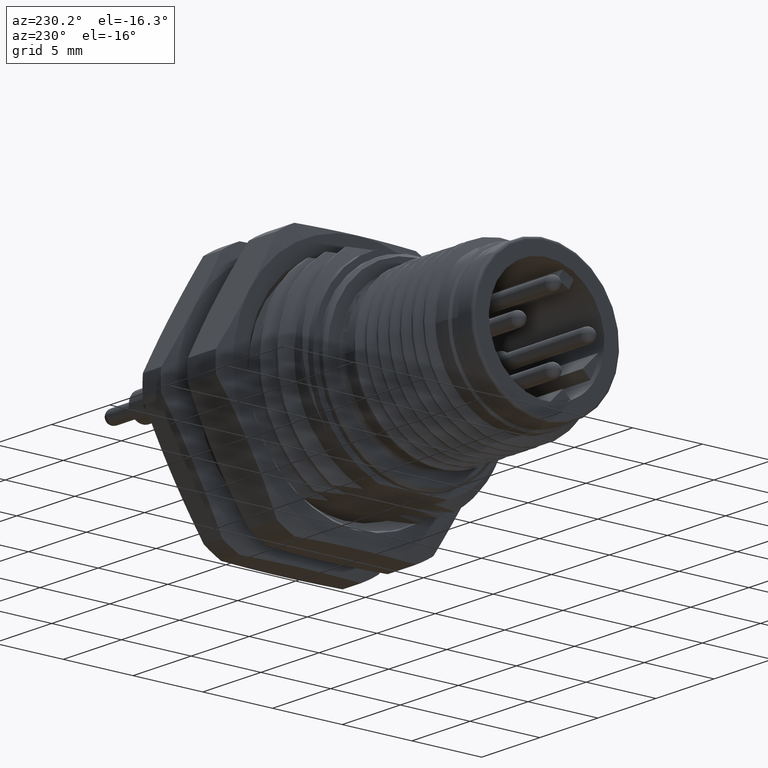
[diagram: clean part render]
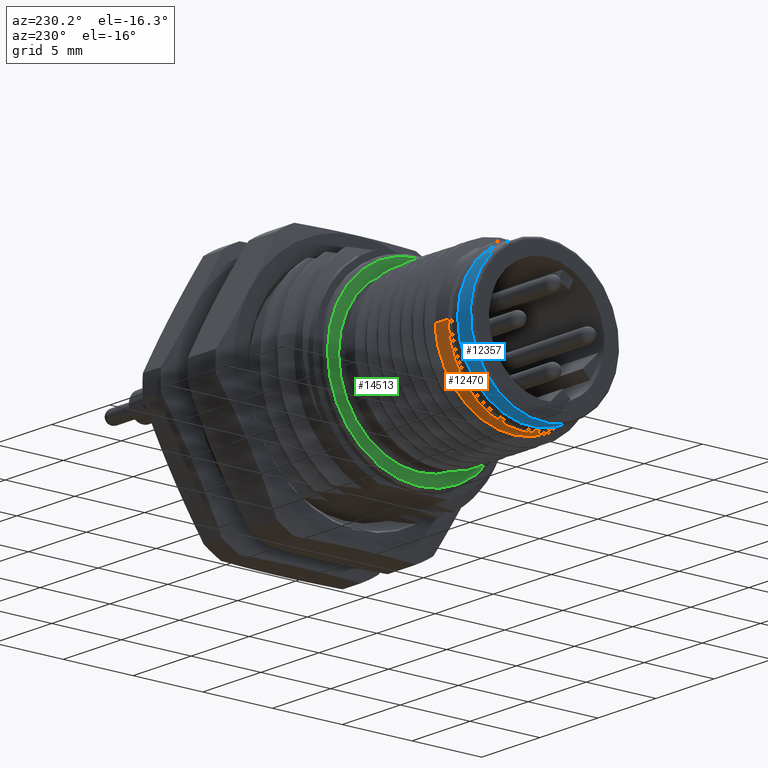
[diagram: same view with three faces highlighted in distinct colors, each labeled with its STEP entity id]
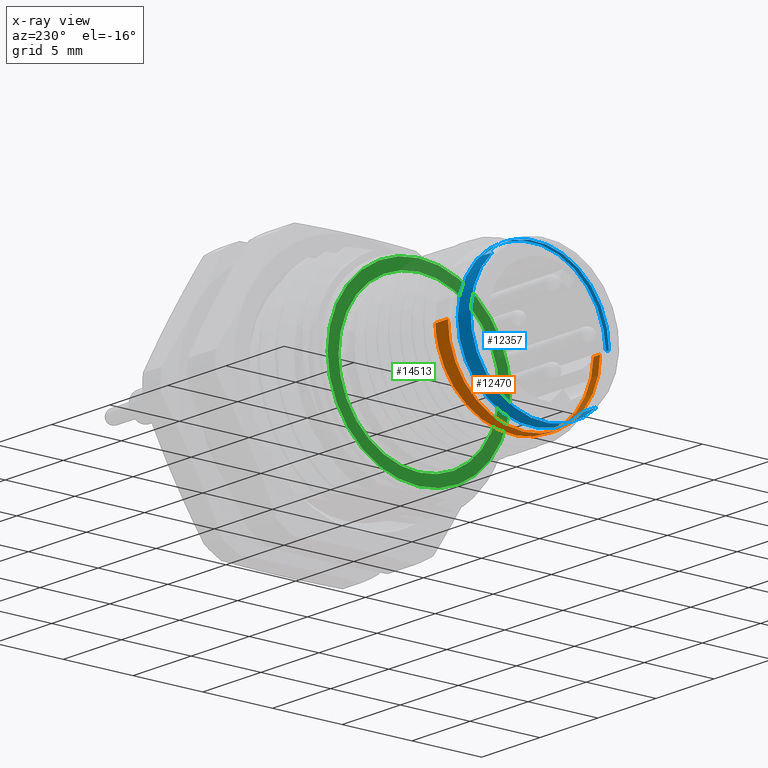
[diagram: x-ray of the same camera — body ghosted, the three highlighted faces saturated]
A machine part, auxiliary view with three faces highlighted in distinct colors.
The next image is the same camera in x-ray (body ghosted, the three faces saturated) — at least one of them is partly hidden behind the body in this view.
Their STEP definitions:

[orange] entity #12470 — the highlighted cylindrical surface (partial cylindrical patch) has radius 5.4585 mm, axis along (1, 0, 0).
#925=DIRECTION('',(9.999999999736E-1,7.256574119423E-6,-2.071134268686E-7));
#926=VECTOR('',#925,1.074879476841E0);
#927=CARTESIAN_POINT('',(3.5E-1,5.4585E0,0.E0));
#928=LINE('',#927,#926);
#989=DIRECTION('',(-9.999999993418E-1,3.628261972116E-5,-8.831201062969E-8));
#990=VECTOR('',#989,5.748765640025E-1);
#991=CARTESIAN_POINT('',(9.248765636240E-1,-5.458520858028E0,
5.076850606654E-8));
#992=LINE('',#991,#990);
#993=CARTESIAN_POINT('',(9.248765636240E-1,-5.458520858028E0,
5.076850606654E-8));
#994=CARTESIAN_POINT('',(9.340864886858E-1,-5.458520858028E0,
-3.170196583868E-1));
#995=CARTESIAN_POINT('',(9.526204755414E-1,-5.403490695736E0,
-9.516745297474E-1));
#996=CARTESIAN_POINT('',(9.806555508446E-1,-5.152835643954E0,
-1.884187516012E0));
#997=CARTESIAN_POINT('',(1.008258303372E0,-4.749566580639E0,-2.744549310492E0));
#998=CARTESIAN_POINT('',(1.035666071899E0,-4.209253302002E0,-3.518038009570E0));
#999=CARTESIAN_POINT('',(1.063485504943E0,-3.533977812095E0,-4.197236569377E0));
#1000=CARTESIAN_POINT('',(1.091592757164E0,-2.741456597615E0,
-4.752592915279E0));
#1001=CARTESIAN_POINT('',(1.119234496427E0,-1.878628666248E0,
-5.153896274067E0));
#1002=CARTESIAN_POINT('',(1.146768373745E0,-9.635281853112E-1,
-5.401138411445E0));
#1003=CARTESIAN_POINT('',(1.174937480139E0,2.496500660233E-3,
-5.487360572491E0));
#1004=CARTESIAN_POINT('',(1.203097103062E0,9.681672332981E-1,
-5.400416033162E0));
#1005=CARTESIAN_POINT('',(1.230717594308E0,1.885827078877E0,-5.151306655881E0));
#1006=CARTESIAN_POINT('',(1.258268672935E0,2.745262724304E0,-4.750069730622E0));
#1007=CARTESIAN_POINT('',(1.286303396274E0,3.535593664338E0,-4.196023228808E0));
#1008=CARTESIAN_POINT('',(1.314253939940E0,4.213618723932E0,-3.513092528443E0));
#1009=CARTESIAN_POINT('',(1.341656069057E0,4.752633903761E0,-2.739043704749E0));
#1010=CARTESIAN_POINT('',(1.369181394073E0,5.153947696603E0,-1.880390932118E0));
#1011=CARTESIAN_POINT('',(1.397105135110E0,5.403124321411E0,
-9.527672785978E-1));
#1012=CARTESIAN_POINT('',(1.415559760852E0,5.458507799943E0,
-3.177182263481E-1));
#1013=CARTESIAN_POINT('',(1.424879476813E0,5.458507799943E0,
-2.226219727549E-7));
#1015=CARTESIAN_POINT('',(3.499999999999E-1,0.E0,0.E0));
#1016=DIRECTION('',(1.E0,0.E0,0.E0));
#1017=DIRECTION('',(0.E0,-1.E0,0.E0));
#1018=AXIS2_PLACEMENT_3D('',#1015,#1016,#1017);
#1020=CARTESIAN_POINT('',(3.499999999999E-1,0.E0,0.E0));
#1021=DIRECTION('',(1.E0,0.E0,0.E0));
#1022=DIRECTION('',(0.E0,0.E0,-1.E0));
#1023=AXIS2_PLACEMENT_3D('',#1020,#1021,#1022);
#10074=CARTESIAN_POINT('',(3.499999999999E-1,0.E0,-5.4585E0));
#10075=CARTESIAN_POINT('',(3.499999999999E-1,5.4585E0,0.E0));
#10076=VERTEX_POINT('',#10074);
#10077=VERTEX_POINT('',#10075);
#10078=CARTESIAN_POINT('',(3.499999999999E-1,-5.4585E0,0.E0));
#10079=VERTEX_POINT('',#10078);
#10080=CARTESIAN_POINT('',(9.248765636240E-1,-5.458520858028E0,
5.076850606654E-8));
#10081=VERTEX_POINT('',#10080);
#10082=VERTEX_POINT('',#1013);
#12455=CARTESIAN_POINT('',(1.75E-1,0.E0,0.E0));
#12456=DIRECTION('',(1.E0,0.E0,0.E0));
#12457=DIRECTION('',(0.E0,-1.E0,0.E0));
#12458=AXIS2_PLACEMENT_3D('',#12455,#12456,#12457);
#12459=CYLINDRICAL_SURFACE('',#12458,5.4585E0);
#12461=ORIENTED_EDGE('',*,*,#12460,.F.);
#12463=ORIENTED_EDGE('',*,*,#12462,.F.);
#12464=ORIENTED_EDGE('',*,*,#12450,.F.);
#12466=ORIENTED_EDGE('',*,*,#12465,.T.);
#12467=ORIENTED_EDGE('',*,*,#12434,.F.);
#12468=EDGE_LOOP('',(#12461,#12463,#12464,#12466,#12467));
#12469=FACE_OUTER_BOUND('',#12468,.F.);
#12470=ADVANCED_FACE('',(#12469),#12459,.T.);
#1014=B_SPLINE_CURVE_WITH_KNOTS('',3,(#993,#994,#995,#996,#997,#998,#999,#1000,
#1001,#1002,#1003,#1004,#1005,#1006,#1007,#1008,#1009,#1010,#1011,#1012,#1013),
.UNSPECIFIED.,.F.,.F.,(4,1,1,1,1,1,1,1,1,1,1,1,1,1,1,1,1,1,4),(0.E0,
5.555555555556E-2,1.111111111111E-1,1.666666666667E-1,2.222222222222E-1,
2.777777777778E-1,3.333333333333E-1,3.888888888889E-1,4.444444444444E-1,5.E-1,
5.555555555556E-1,6.111111111111E-1,6.666666666667E-1,7.222222222222E-1,
7.777777777778E-1,8.333333333333E-1,8.888888888889E-1,9.444444444444E-1,1.E0),
.UNSPECIFIED.);
#1019=CIRCLE('',#1018,5.4585E0);
#1024=CIRCLE('',#1023,5.4585E0);
#12434=EDGE_CURVE('',#10077,#10082,#928,.T.);
#12450=EDGE_CURVE('',#10081,#10079,#992,.T.);
#12460=EDGE_CURVE('',#10076,#10077,#1024,.T.);
#12462=EDGE_CURVE('',#10079,#10076,#1019,.T.);
#12465=EDGE_CURVE('',#10081,#10082,#1014,.T.);

[blue] entity #12357 — the highlighted cylindrical surface (partial cylindrical patch) has radius 5.3 mm, axis along (1, 0, 0).
#843=CARTESIAN_POINT('',(-1.4E0,0.E0,0.E0));
#844=DIRECTION('',(1.E0,0.E0,0.E0));
#845=DIRECTION('',(0.E0,-7.071067811865E-1,-7.071067811865E-1));
#846=AXIS2_PLACEMENT_3D('',#843,#844,#845);
#848=CARTESIAN_POINT('',(-3.E-1,-5.160538149798E0,1.207826976215E0));
#849=CARTESIAN_POINT('',(-3.089771953576E-1,-5.191222405688E0,
1.076726344330E0));
#850=CARTESIAN_POINT('',(-3.237776221205E-1,-5.241686168073E0,
8.121536338119E-1));
#851=CARTESIAN_POINT('',(-3.350553599169E-1,-5.284957524697E0,
4.585281795644E-1));
#852=CARTESIAN_POINT('',(-3.382139378649E-1,-5.299999999567E0,
1.581474530115E-1));
#853=CARTESIAN_POINT('',(-3.384597466113E-1,-5.3E0,1.221728423387E-8));
#855=DIRECTION('',(-1.E0,0.E0,-8.835273958016E-9));
#856=VECTOR('',#855,2.615402533887E-1);
#857=CARTESIAN_POINT('',(-3.384597466113E-1,-5.3E0,1.221728423387E-8));
#858=LINE('',#857,#856);
#859=CARTESIAN_POINT('',(-6.E-1,0.E0,0.E0));
#860=DIRECTION('',(-1.E0,0.E0,0.E0));
#861=DIRECTION('',(0.E0,-1.E0,1.869151374559E-9));
#862=AXIS2_PLACEMENT_3D('',#859,#860,#861);
#864=DIRECTION('',(-1.E0,1.665889648450E-12,1.661448756352E-12));
#865=VECTOR('',#864,8.E-1);
#866=CARTESIAN_POINT('',(-6.E-1,3.747665940289E0,3.747665940289E0));
#867=LINE('',#866,#865);
#868=DIRECTION('',(9.999999999986E-1,-1.192549745014E-6,1.192552713952E-6));
#869=VECTOR('',#868,1.100000000002E0);
#870=CARTESIAN_POINT('',(-1.4E0,-3.747666001781E0,-3.747665878799E0));
#871=LINE('',#870,#869);
#872=CARTESIAN_POINT('',(-3.E-1,0.E0,0.E0));
#873=DIRECTION('',(-1.E0,0.E0,0.E0));
#874=DIRECTION('',(0.E0,-9.736865689686E-1,2.278913456238E-1));
#875=AXIS2_PLACEMENT_3D('',#872,#873,#874);
#890=CARTESIAN_POINT('',(-3.E-1,0.E0,0.E0));
#891=DIRECTION('',(1.E0,0.E0,0.E0));
#892=DIRECTION('',(0.E0,-7.071070016256E-1,-7.071065607474E-1));
#893=AXIS2_PLACEMENT_3D('',#890,#891,#892);
#10667=CARTESIAN_POINT('',(-1.4E0,3.747665940292E0,3.747665940292E0));
#10668=CARTESIAN_POINT('',(-1.4E0,-3.747666186255E0,-3.747665694328E0));
#10669=VERTEX_POINT('',#10667);
#10670=VERTEX_POINT('',#10668);
#10671=CARTESIAN_POINT('',(-6.E-1,3.747665940289E0,3.747665940289E0));
#10672=VERTEX_POINT('',#10671);
#10673=CARTESIAN_POINT('',(-3.384597466113E-1,-5.3E0,1.221728423387E-8));
#10674=CARTESIAN_POINT('',(-6.E-1,-5.3E0,9.906504444128E-9));
#10675=VERTEX_POINT('',#10673);
#10676=VERTEX_POINT('',#10674);
#11117=CARTESIAN_POINT('',(-3.E-1,-5.160538815533E0,1.207824131806E0));
#11118=CARTESIAN_POINT('',(-3.E-1,5.3E0,0.E0));
#11119=VERTEX_POINT('',#11117);
#11120=VERTEX_POINT('',#11118);
#11122=CARTESIAN_POINT('',(-3.E-1,-3.747667108616E0,-3.747664771961E0));
#11124=VERTEX_POINT('',#11122);
#12335=CARTESIAN_POINT('',(-1.422E0,0.E0,0.E0));
#12336=DIRECTION('',(1.E0,0.E0,0.E0));
#12337=DIRECTION('',(0.E0,7.071067811865E-1,7.071067811865E-1));
#12338=AXIS2_PLACEMENT_3D('',#12335,#12336,#12337);
#12339=CYLINDRICAL_SURFACE('',#12338,5.3E0);
#12341=ORIENTED_EDGE('',*,*,#12340,.F.);
#12343=ORIENTED_EDGE('',*,*,#12342,.T.);
#12345=ORIENTED_EDGE('',*,*,#12344,.T.);
#12347=ORIENTED_EDGE('',*,*,#12346,.T.);
#12349=ORIENTED_EDGE('',*,*,#12348,.T.);
#12350=ORIENTED_EDGE('',*,*,#12329,.F.);
#12352=ORIENTED_EDGE('',*,*,#12351,.T.);
#12354=ORIENTED_EDGE('',*,*,#12353,.T.);
#12355=EDGE_LOOP('',(#12341,#12343,#12345,#12347,#12349,#12350,#12352,#12354));
#12356=FACE_OUTER_BOUND('',#12355,.F.);
#12357=ADVANCED_FACE('',(#12356),#12339,.T.);
#847=CIRCLE('',#846,5.300000000004E0);
#854=B_SPLINE_CURVE_WITH_KNOTS('',3,(#848,#849,#850,#851,#852,#853),
.UNSPECIFIED.,.F.,.F.,(4,1,1,4),(0.E0,3.333333333333E-1,6.666666666667E-1,1.E0),
.UNSPECIFIED.);
#863=CIRCLE('',#862,5.3E0);
#876=CIRCLE('',#875,5.3E0);
#894=CIRCLE('',#893,5.3E0);
#12329=EDGE_CURVE('',#10670,#10669,#847,.T.);
#12340=EDGE_CURVE('',#11119,#11120,#876,.T.);
#12342=EDGE_CURVE('',#11119,#10675,#854,.T.);
#12344=EDGE_CURVE('',#10675,#10676,#858,.T.);
#12346=EDGE_CURVE('',#10676,#10672,#863,.T.);
#12348=EDGE_CURVE('',#10672,#10669,#867,.T.);
#12351=EDGE_CURVE('',#10670,#11124,#871,.T.);
#12353=EDGE_CURVE('',#11124,#11120,#894,.T.);

[green] entity #14513 — the highlighted planar face has unit normal (1, 0, 0).
#2230=CARTESIAN_POINT('',(9.4E0,0.E0,0.E0));
#2231=DIRECTION('',(1.E0,0.E0,0.E0));
#2232=DIRECTION('',(0.E0,-1.E0,0.E0));
#2233=AXIS2_PLACEMENT_3D('',#2230,#2231,#2232);
#2235=CARTESIAN_POINT('',(9.4E0,0.E0,0.E0));
#2236=DIRECTION('',(1.E0,0.E0,0.E0));
#2237=DIRECTION('',(0.E0,0.E0,-1.E0));
#2238=AXIS2_PLACEMENT_3D('',#2235,#2236,#2237);
#2240=CARTESIAN_POINT('',(9.4E0,0.E0,0.E0));
#2241=DIRECTION('',(1.E0,0.E0,0.E0));
#2242=DIRECTION('',(0.E0,1.E0,0.E0));
#2243=AXIS2_PLACEMENT_3D('',#2240,#2241,#2242);
#2245=CARTESIAN_POINT('',(9.4E0,0.E0,0.E0));
#2246=DIRECTION('',(-1.E0,0.E0,0.E0));
#2247=DIRECTION('',(0.E0,1.E0,0.E0));
#2248=AXIS2_PLACEMENT_3D('',#2245,#2246,#2247);
#2250=CARTESIAN_POINT('',(9.4E0,0.E0,0.E0));
#2251=DIRECTION('',(-1.E0,0.E0,0.E0));
#2252=DIRECTION('',(0.E0,-1.E0,0.E0));
#2253=AXIS2_PLACEMENT_3D('',#2250,#2251,#2252);
#10024=CARTESIAN_POINT('',(9.4E0,-6.55E0,0.E0));
#10025=VERTEX_POINT('',#10024);
#10026=CARTESIAN_POINT('',(9.4E0,5.7585E0,0.E0));
#10027=CARTESIAN_POINT('',(9.4E0,-5.7585E0,0.E0));
#10028=VERTEX_POINT('',#10026);
#10029=VERTEX_POINT('',#10027);
#10030=CARTESIAN_POINT('',(9.4E0,0.E0,-6.55E0));
#10031=VERTEX_POINT('',#10030);
#10032=CARTESIAN_POINT('',(9.4E0,6.55E0,0.E0));
#10033=VERTEX_POINT('',#10032);
#14496=CARTESIAN_POINT('',(9.4E0,0.E0,3.117334321107E-3));
#14497=DIRECTION('',(1.E0,0.E0,0.E0));
#14498=DIRECTION('',(0.E0,-1.E0,0.E0));
#14499=AXIS2_PLACEMENT_3D('',#14496,#14497,#14498);
#14500=PLANE('',#14499);
#14502=ORIENTED_EDGE('',*,*,#14501,.T.);
#14504=ORIENTED_EDGE('',*,*,#14503,.T.);
#14506=ORIENTED_EDGE('',*,*,#14505,.T.);
#14507=EDGE_LOOP('',(#14502,#14504,#14506));
#14508=FACE_OUTER_BOUND('',#14507,.F.);
#14509=ORIENTED_EDGE('',*,*,#14478,.T.);
#14510=ORIENTED_EDGE('',*,*,#14463,.T.);
#14511=EDGE_LOOP('',(#14509,#14510));
#14512=FACE_BOUND('',#14511,.F.);
#14513=ADVANCED_FACE('',(#14508,#14512),#14500,.F.);
#2234=CIRCLE('',#2233,6.55E0);
#2239=CIRCLE('',#2238,6.55E0);
#2244=CIRCLE('',#2243,6.55E0);
#2249=CIRCLE('',#2248,5.7585E0);
#2254=CIRCLE('',#2253,5.7585E0);
#14463=EDGE_CURVE('',#10029,#10028,#2254,.T.);
#14478=EDGE_CURVE('',#10028,#10029,#2249,.T.);
#14501=EDGE_CURVE('',#10025,#10031,#2234,.T.);
#14503=EDGE_CURVE('',#10031,#10033,#2239,.T.);
#14505=EDGE_CURVE('',#10033,#10025,#2244,.T.);